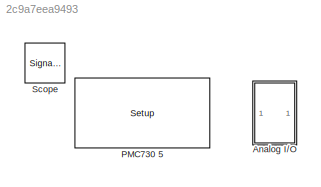
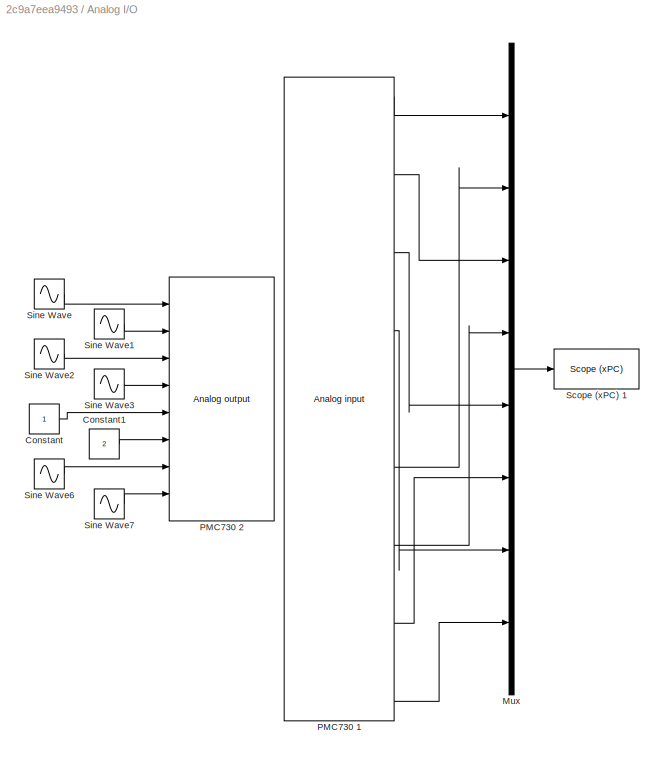
MODEL slx_2c9a7eea9493
KIND model
BLOCK [SubSystem] Analog I//O
  FunctionWithSeparateData = off
  MaskHideContents = off
  MinAlgLoopOccurrences = off
  Opaque = off
  Ports = []
  PropExecContextOutsideSubsystem = off
  RTWSystemCode = Auto
  RequestExecContextInheritance = off
BLOCK [Constant] Analog I//O/Constant
BLOCK [Constant] Analog I//O/Constant1
  Value = 2
BLOCK [Mux] Analog I//O/Mux
  DisplayOption = bar
  Inputs = 8
  Ports = [8, 1]
BLOCK [Reference] Analog I//O/PMC730 1  REF=speedgoatlib_IO101/Analog input
  Ports = [0, 32]
  SourceBlock = speedgoatlib_IO101/Analog input
  SourceType = ad_IO101
  acqMode = 1
  coupling = 2
  id = 1
  numChannels = 32
  outpMode = Values
  pciSlot = -1
  range = 3
  startChannel = 1
  ts = Ts
BLOCK [Reference] Analog I//O/PMC730 2  REF=speedgoatlib_IO101/Analog output
  Ports = [8]
  SourceBlock = speedgoatlib_IO101/Analog output
  SourceType = da_IO101
  channel = [1,2,3,4,5,6,7,8]
  id = 1
  initValue = [0,0,0,0,0,0,0,0]
  pciSlot = -1
  reset = [1,1,1,1,1,1,1,1]
  ts = Ts
BLOCK [Reference] Analog I//O/Scope (xPC) 1  REF=xpclib/Misc./Scope (xPC) 
  Ports = [1]
  SourceBlock = xpclib/Misc./Scope (xPC)
  SourceType = xpcscopeblock
  autorestart = off
  autostart = on
  dynamicfilemode = off
  filename = data.dat
  formatstr = '%15.6f'
  grid = on
  interleave = 1
  maxwritefilesize = 512*1024^2
  mode = Lazy
  noprepostsamples = 0
  nosamples = 250
  scopeno = 2
  scopetype = Target
  triggerlevel = 0.0
  triggermode = Signal triggering
  triggersample = 0
  triggerscope = 1
  triggersignal = 1
  triggerslope = Rising
  trigsignalfromport = off
  viewmode = Graphical redraw
  writesize = 512
  ylimits = [0,0]
BLOCK [Sin] Analog I//O/Sine Wave
  Frequency = 2*pi*1/Ts/50
  Ports = [0, 1]
  SampleTime = Ts
BLOCK [Sin] Analog I//O/Sine Wave1
  Amplitude = 2
  Frequency = 2*pi*1/Ts/50
  Ports = [0, 1]
  SampleTime = Ts
BLOCK [Sin] Analog I//O/Sine Wave2
  Amplitude = 3
  Frequency = 2*pi*1/Ts/50
  Ports = [0, 1]
  SampleTime = Ts
BLOCK [Sin] Analog I//O/Sine Wave3
  Amplitude = 4
  Frequency = 2*pi*1/Ts/50
  Ports = [0, 1]
  SampleTime = Ts
BLOCK [Sin] Analog I//O/Sine Wave6
  Amplitude = 1.5
  Bias = 1.5
  Frequency = 2*pi*1/Ts/500
  Ports = [0, 1]
  SampleTime = Ts
BLOCK [Sin] Analog I//O/Sine Wave7
  Amplitude = 8
  Frequency = 2*pi*1/Ts/50
  Ports = [0, 1]
  SampleTime = Ts
BLOCK [Reference] PMC730 5  REF=speedgoatlib_IO101/Setup
  Ports = []
  SourceBlock = speedgoatlib_IO101/Setup
  SourceType = setup_IO101
  adAcqMode = Standard
  adCoupling = Single-ended
  adNumChannel = 32
  adRange = -10 .. 10 Volts
  adStartChannel = 1
  daChannel = [1:8]
  daInitValue = [0]
  daReset = [1]
  group = Digital setup lower channel
  id = 1
  lowerChannel = [1:8]
  lowerDIDebounce = 0
  lowerDOInitValues = [0]
  lowerDOReset = [1]
  lowerDirection = Input
  pciSlot = -1
  upperChannel = [1:8]
  upperDIDebounce = 0
  upperDOInitValues = 0
  upperDOReset = 0
  upperDirection = Output
BLOCK [SignalViewerScope] Scope
  IOType = viewer
  MaxDataPoints = 7500
  NumInputPorts = 1
  Ports = []
  RefreshTime = 0.035000
  ShowDataMarkers = off
  ShowLegends = off
  ZoomMode = xonly
LINE Analog I//O/Constant1:1 -> Analog I//O/PMC730 2:6
LINE Analog I//O/Constant:1 -> Analog I//O/PMC730 2:5
LINE Analog I//O/Mux:1 -> Analog I//O/Scope (xPC) 1:1
LINE Analog I//O/PMC730 1:1 -> Analog I//O/Mux:1
LINE Analog I//O/PMC730 1:13 -> Analog I//O/Mux:7
LINE Analog I//O/PMC730 1:20 -> Analog I//O/Mux:2
LINE Analog I//O/PMC730 1:24 -> Analog I//O/Mux:4
LINE Analog I//O/PMC730 1:28 -> Analog I//O/Mux:6
LINE Analog I//O/PMC730 1:32 -> Analog I//O/Mux:8
LINE Analog I//O/PMC730 1:5 -> Analog I//O/Mux:3
LINE Analog I//O/PMC730 1:9 -> Analog I//O/Mux:5
LINE Analog I//O/Sine Wave1:1 -> Analog I//O/PMC730 2:2
LINE Analog I//O/Sine Wave2:1 -> Analog I//O/PMC730 2:3
LINE Analog I//O/Sine Wave3:1 -> Analog I//O/PMC730 2:4
LINE Analog I//O/Sine Wave6:1 -> Analog I//O/PMC730 2:7
LINE Analog I//O/Sine Wave7:1 -> Analog I//O/PMC730 2:8
LINE Analog I//O/Sine Wave:1 -> Analog I//O/PMC730 2:1
